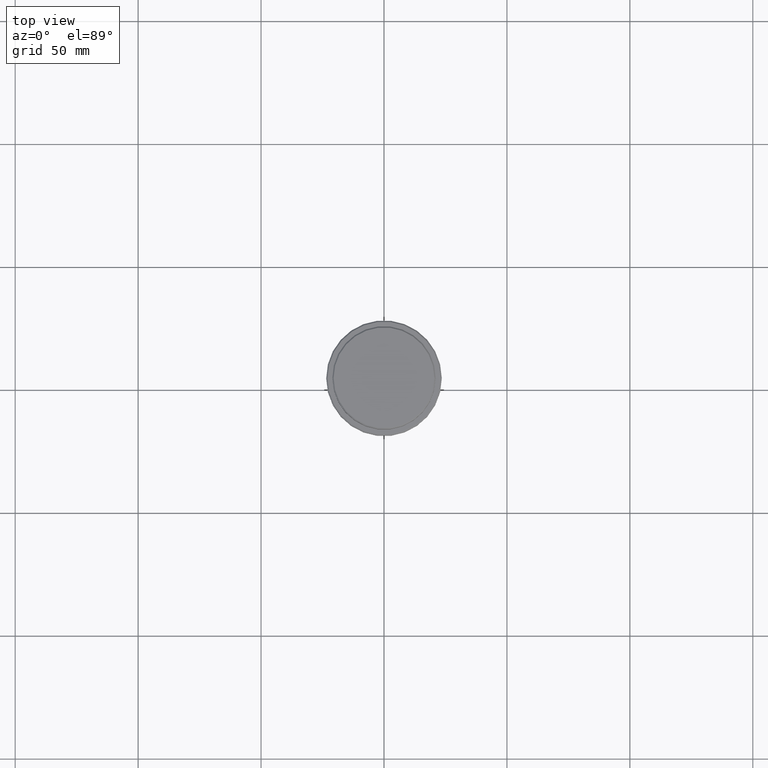
[diagram: clean part render]
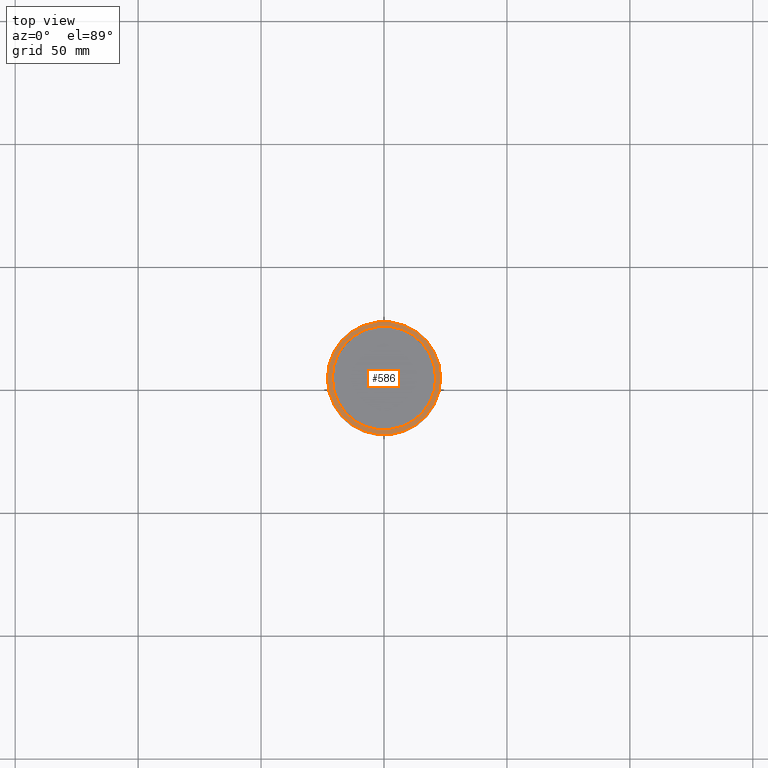
[diagram: same view with one face highlighted and labeled with its STEP entity id]
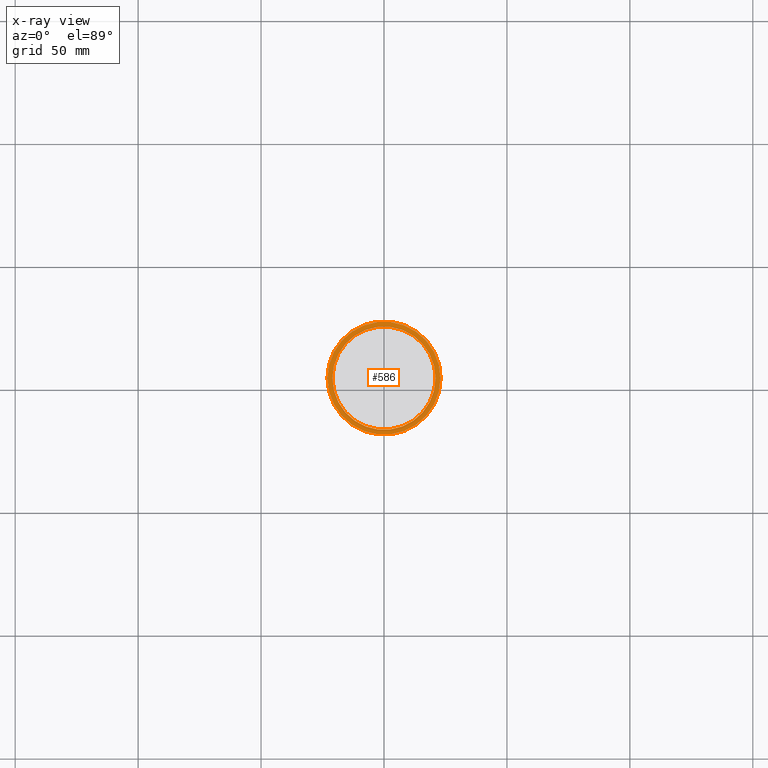
[diagram: x-ray of the same camera — body ghosted, the highlighted face saturated]
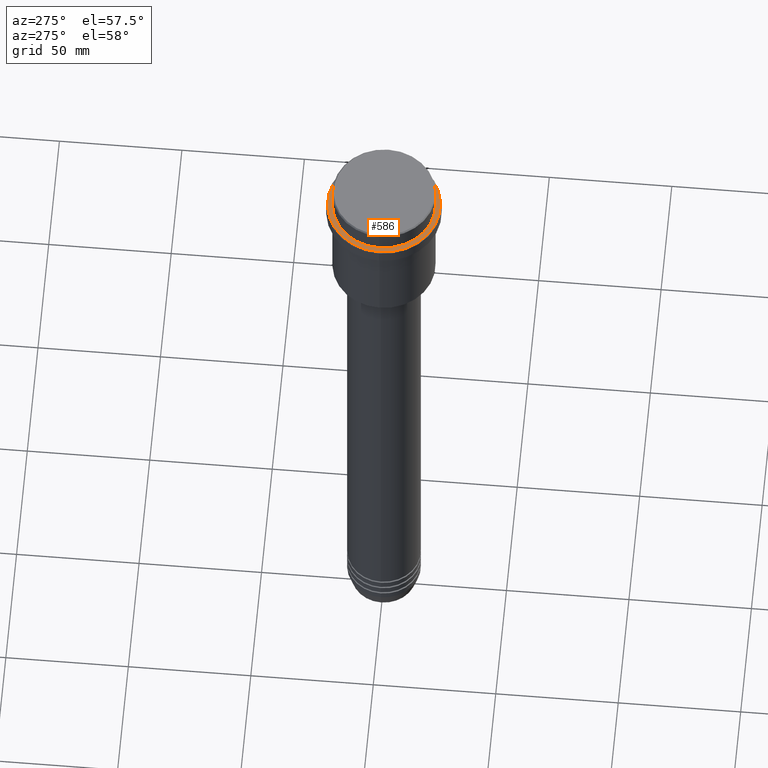
[diagram: same view with one face highlighted and labeled with its STEP entity id]
A machine part, top view. The second image highlights one B-rep face of the part: STEP entity #586.
The next image is the same camera in x-ray: the body ghosted, the highlighted face saturated — about 0% of this face is hidden behind the body in this view.
A second angle (auxiliary view) of the same face is appended — the face is thin or edge-on in the first view.
In plain terms, the highlighted planar face has unit normal (0, -0, 1).
Its self-contained STEP definition (entity closure, byte-faithful):
#32 = EDGE_CURVE ( 'NONE', #1162, #929, #52, .T. ) ;
#34 = CARTESIAN_POINT ( 'NONE',  ( 22.99999999999991118, 2.847303808017590617E-15, -9.000000000000001776 ) ) ;
#52 = CIRCLE ( 'NONE', #862, 22.99999999999991118 ) ;
#57 = AXIS2_PLACEMENT_3D ( 'NONE', #1058, #658, #970 ) ;
#85 = DIRECTION ( 'NONE',  ( -0.000000000000000000, -0.000000000000000000, 1.000000000000000000 ) ) ;
#136 = VERTEX_POINT ( 'NONE', #561 ) ;
#156 = EDGE_LOOP ( 'NONE', ( #614, #533 ) ) ;
#327 = PLANE ( 'NONE',  #827 ) ;
#400 = DIRECTION ( 'NONE',  ( -0.000000000000000000, -0.000000000000000000, 1.000000000000000000 ) ) ;
#417 = ORIENTED_EDGE ( 'NONE', *, *, #1261, .T. ) ;
#484 = CIRCLE ( 'NONE', #1386, 22.99999999999991118 ) ;
#533 = ORIENTED_EDGE ( 'NONE', *, *, #32, .T. ) ;
#534 = DIRECTION ( 'NONE',  ( 1.000000000000000000, 0.000000000000000000, 0.000000000000000000 ) ) ;
#536 = DIRECTION ( 'NONE',  ( 1.000000000000000000, 0.000000000000000000, 0.000000000000000000 ) ) ;
#545 = CARTESIAN_POINT ( 'NONE',  ( 0.000000000000000000, 0.000000000000000000, -9.000000000000001776 ) ) ;
#554 = FACE_OUTER_BOUND ( 'NONE', #156, .T. ) ;
#561 = CARTESIAN_POINT ( 'NONE',  ( -20.99999999999999289, 2.571758278209440872E-15, -9.000000000000001776 ) ) ;
#566 = DIRECTION ( 'NONE',  ( 1.000000000000000000, 0.000000000000000000, 0.000000000000000000 ) ) ;
#572 = DIRECTION ( 'NONE',  ( 0.000000000000000000, -0.000000000000000000, 1.000000000000000000 ) ) ;
#586 = ADVANCED_FACE ( 'NONE', ( #554, #792 ), #327, .T. ) ;
#592 = CARTESIAN_POINT ( 'NONE',  ( 20.99999999999999289, 0.000000000000000000, -9.000000000000001776 ) ) ;
#614 = ORIENTED_EDGE ( 'NONE', *, *, #1399, .T. ) ;
#629 = EDGE_LOOP ( 'NONE', ( #1124, #417 ) ) ;
#640 = CARTESIAN_POINT ( 'NONE',  ( 0.000000000000000000, 0.000000000000000000, -9.000000000000001776 ) ) ;
#658 = DIRECTION ( 'NONE',  ( 0.000000000000000000, 0.000000000000000000, -1.000000000000000000 ) ) ;
#733 = CIRCLE ( 'NONE', #1317, 20.99999999999999289 ) ;
#792 = FACE_BOUND ( 'NONE', #629, .T. ) ;
#807 = VERTEX_POINT ( 'NONE', #592 ) ;
#827 = AXIS2_PLACEMENT_3D ( 'NONE', #988, #572, #566 ) ;
#835 = CARTESIAN_POINT ( 'NONE',  ( -22.99999999999991118, 0.000000000000000000, -9.000000000000001776 ) ) ;
#862 = AXIS2_PLACEMENT_3D ( 'NONE', #545, #400, #959 ) ;
#865 = EDGE_CURVE ( 'NONE', #807, #136, #733, .T. ) ;
#929 = VERTEX_POINT ( 'NONE', #835 ) ;
#959 = DIRECTION ( 'NONE',  ( 1.000000000000000000, 0.000000000000000000, 0.000000000000000000 ) ) ;
#970 = DIRECTION ( 'NONE',  ( 1.000000000000000000, 0.000000000000000000, 0.000000000000000000 ) ) ;
#988 = CARTESIAN_POINT ( 'NONE',  ( 0.000000000000000000, 20.49999999999999645, -9.000000000000001776 ) ) ;
#1058 = CARTESIAN_POINT ( 'NONE',  ( 0.000000000000000000, 0.000000000000000000, -9.000000000000001776 ) ) ;
#1073 = CIRCLE ( 'NONE', #57, 20.99999999999999289 ) ;
#1124 = ORIENTED_EDGE ( 'NONE', *, *, #865, .T. ) ;
#1162 = VERTEX_POINT ( 'NONE', #34 ) ;
#1171 = CARTESIAN_POINT ( 'NONE',  ( 0.000000000000000000, 0.000000000000000000, -9.000000000000001776 ) ) ;
#1179 = DIRECTION ( 'NONE',  ( 0.000000000000000000, 0.000000000000000000, -1.000000000000000000 ) ) ;
#1261 = EDGE_CURVE ( 'NONE', #136, #807, #1073, .T. ) ;
#1317 = AXIS2_PLACEMENT_3D ( 'NONE', #1171, #1179, #536 ) ;
#1386 = AXIS2_PLACEMENT_3D ( 'NONE', #640, #85, #534 ) ;
#1399 = EDGE_CURVE ( 'NONE', #929, #1162, #484, .T. ) ;